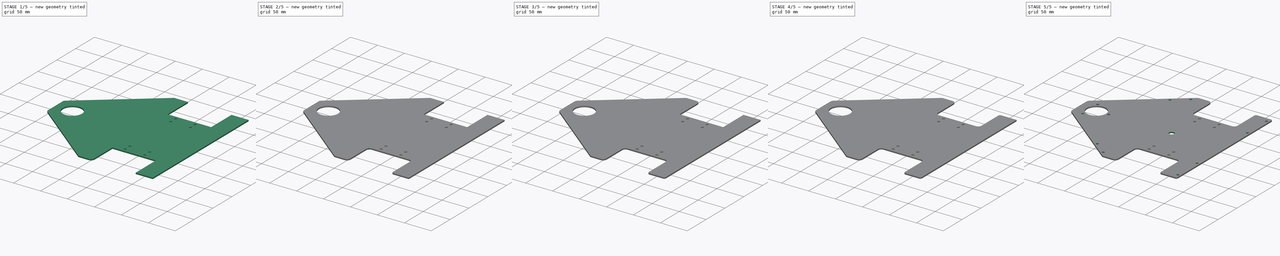
[diagram: build sequence overview — one tinted view per stage of 5, left to right]
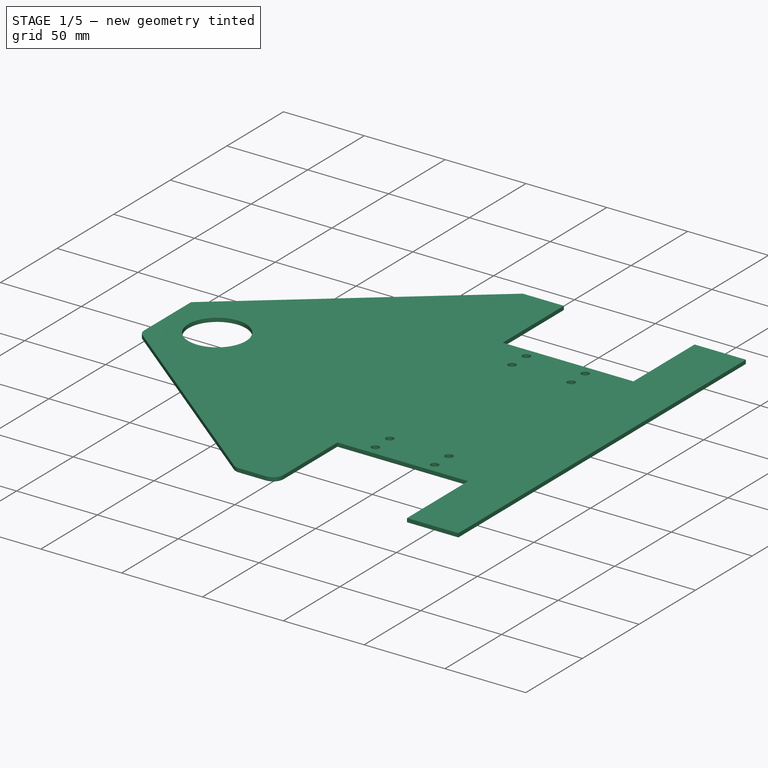
[diagram: stage 1 of 5 — iso view after this stage's code; geometry added in this stage tinted green]
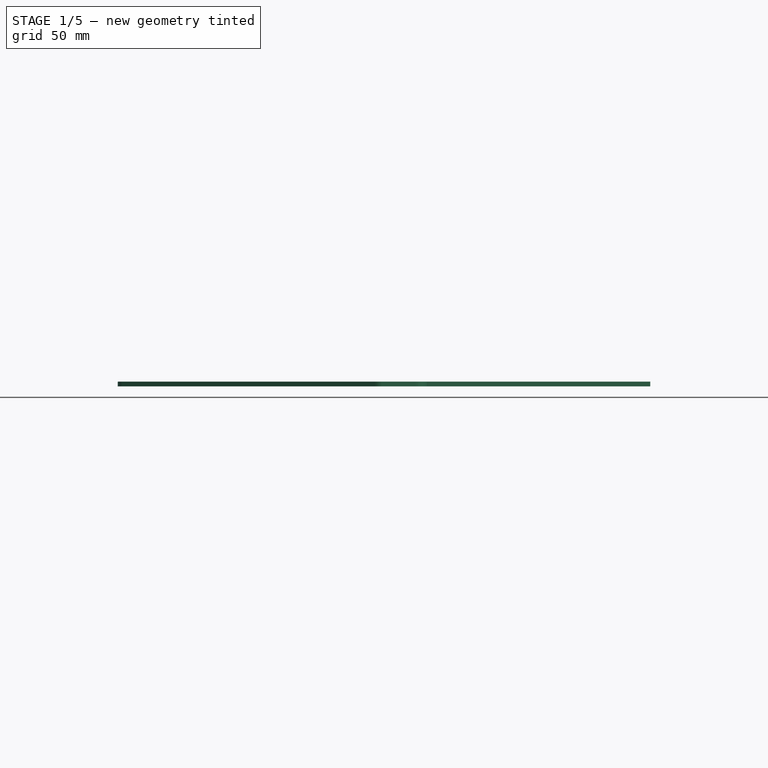
[diagram: stage 1 of 5 — front view after this stage's code; geometry added in this stage tinted green]
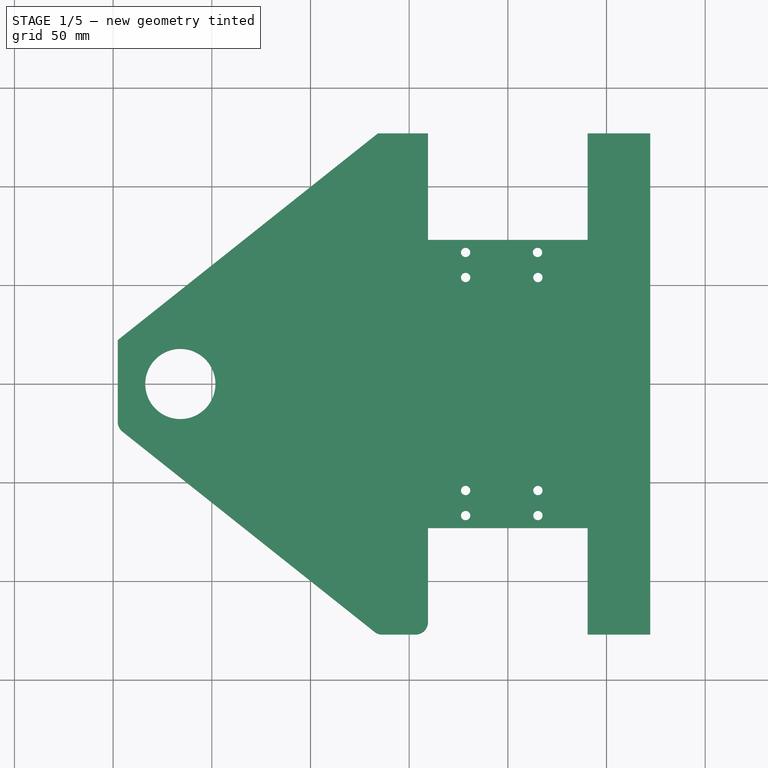
[diagram: stage 1 of 5 — top view after this stage's code; geometry added in this stage tinted green]
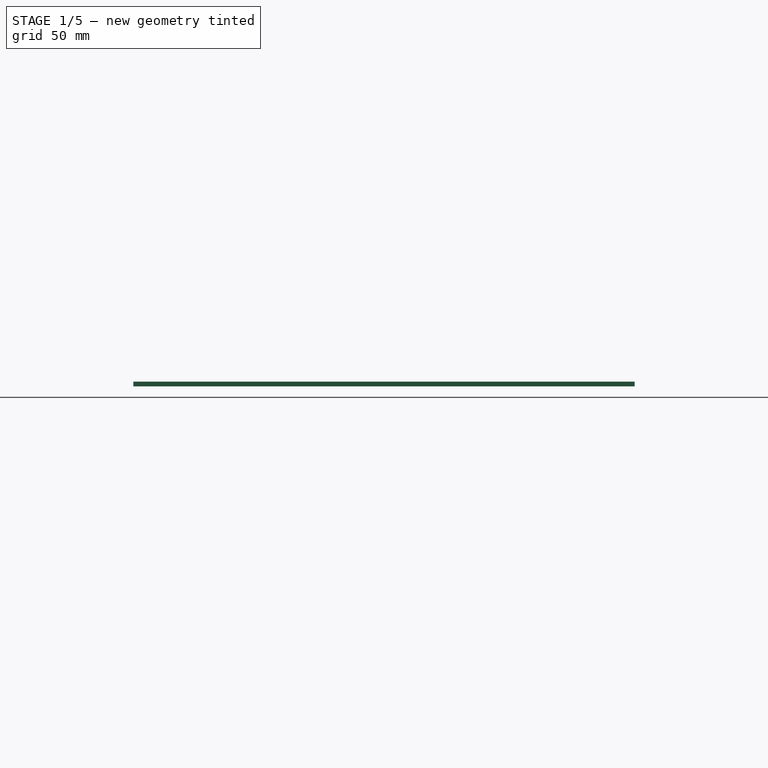
[diagram: stage 1 of 5 — right view after this stage's code; geometry added in this stage tinted green]
FCSTD DOCUMENT  (FreeCAD 0.17R13522 (Git))
Label: plate_bottom
License: All rights reserved
LicenseURL: http://en.wikipedia.org/wiki/All_rights_reserved
objects: PartDesign::Fillet×14, Sketcher::SketchObject×4, PartDesign::Pocket×3, App::DocumentObjectGroup×1, PartDesign::Plane×1, PartDesign::Pad×1, PartDesign::Body×1, App::Part×1
note: 28 computed .brp shape members not serialized (recipe doc carries the construction recipe); baked Part::Feature solids carry a one-line shape summary decoded from their .brp

FEATURE [App::DocumentObjectGroup] Group  label="plate"
FEATURE [PartDesign::Plane] DatumPlane
  AttachmentOffset = pos=(0,0,43.6758) rot=(0,0,1;0rad)
  MapMode = 5
  Placement = pos=(0,0,43.6758) rot=(0,0,1;0rad)
  Support = -> [XY_Plane001]
FEATURE [Sketcher::SketchObject] Sketch  label="main"
  MapMode = 5
  Placement = pos=(0,0,43.6758) rot=(0,0,1;0rad)
  Support = -> [DatumPlane]
  sketch-geometry (24):
    g0: LineSegment StartX=40.4368 StartY=73.025 StartZ=0 EndX=-40.4368 EndY=73.025 EndZ=0
    g1: LineSegment StartX=-40.4368 StartY=73.025 StartZ=0 EndX=-40.4368 EndY=127 EndZ=0
    g2: LineSegment StartX=-40.4368 StartY=127 StartZ=0 EndX=-65.8368 EndY=127 EndZ=0
    g3: LineSegment StartX=-65.8368 StartY=127 StartZ=0 EndX=-197.688 EndY=22.225 EndZ=0
    g4: LineSegment StartX=-197.688 StartY=22.225 StartZ=0 EndX=-197.688 EndY=-22.225 EndZ=0
    g5: LineSegment StartX=-197.688 StartY=-22.225 StartZ=0 EndX=-65.8368 EndY=-127 EndZ=0
    g6: LineSegment StartX=-65.8368 StartY=-127 StartZ=0 EndX=-40.4368 EndY=-127 EndZ=0
    g7: LineSegment StartX=-40.4368 StartY=-127 StartZ=0 EndX=-40.4368 EndY=-73.025 EndZ=0
    g8: LineSegment StartX=-40.4368 StartY=-73.025 StartZ=0 EndX=40.4368 EndY=-73.025 EndZ=0
    g9: LineSegment StartX=40.4368 StartY=-73.025 StartZ=0 EndX=40.4368 EndY=-127 EndZ=0
    g10: LineSegment StartX=40.4368 StartY=-127 StartZ=0 EndX=72.1868 EndY=-127 EndZ=0
    g11: LineSegment StartX=72.1868 StartY=-127 StartZ=0 EndX=72.1868 EndY=127 EndZ=0
    g12: LineSegment StartX=72.1868 StartY=127 StartZ=0 EndX=40.4368 EndY=127 EndZ=0
    g13: LineSegment StartX=40.4368 StartY=127 StartZ=0 EndX=40.4368 EndY=73.025 EndZ=0
    g14: Circle CenterX=-21.3868 CenterY=66.675 CenterZ=0 NormalX=0 NormalY=0 NormalZ=1 AngleXU=0 Radius=2.3622
    g15: Circle CenterX=-21.3868 CenterY=53.975 CenterZ=0 NormalX=0 NormalY=0 NormalZ=1 AngleXU=0 Radius=2.3622
    g16: Circle CenterX=-21.3868 CenterY=-53.975 CenterZ=0 NormalX=0 NormalY=0 NormalZ=1 AngleXU=0 Radius=2.3622
    g17: Circle CenterX=-21.3868 CenterY=-66.675 CenterZ=0 NormalX=0 NormalY=0 NormalZ=1 AngleXU=0 Radius=2.3622
    g18: Circle CenterX=15.0368 CenterY=66.675 CenterZ=0 NormalX=0 NormalY=0 NormalZ=1 AngleXU=0 Radius=2.3622
    g19: Circle CenterX=15.24 CenterY=53.975 CenterZ=0 NormalX=0 NormalY=0 NormalZ=1 AngleXU=0 Radius=2.3622
    g20: Circle CenterX=15.24 CenterY=-53.975 CenterZ=0 NormalX=0 NormalY=0 NormalZ=1 AngleXU=0 Radius=2.3622
    g21: Circle CenterX=15.24 CenterY=-66.675 CenterZ=0 NormalX=0 NormalY=0 NormalZ=1 AngleXU=0 Radius=2.3622
    g22: Circle CenterX=-165.938 CenterY=0 CenterZ=0 NormalX=0 NormalY=0 NormalZ=1 AngleXU=0 Radius=17.78
    g23: LineSegment [constr] StartX=-197.688 StartY=0 StartZ=0 EndX=-165.938 EndY=0 EndZ=0
  constraints (71):
    c: Horizontal(g0)
    c: Coincident(g0,g1)
    c: Vertical(g1)
    c: Coincident(g1,g2)
    c: Horizontal(g2)
    c: Coincident(g2,g3)
    c: Coincident(g3,g4)
    c: Vertical(g4)
    c: Coincident(g4,g5)
    c: Coincident(g5,g6)
    c: Horizontal(g6)
    c: Coincident(g6,g7)
    c: Vertical(g7)
    c: Coincident(g7,g8)
    c: Horizontal(g8)
    c: Coincident(g8,g9)
    c: Vertical(g9)
    c: Coincident(g9,g10)
    c: Horizontal(g10)
    c: Coincident(g10,g11)
    c: Vertical(g11)
    c: Coincident(g11,g12)
    c: Horizontal(g12)
    c: Coincident(g12,g13)
    c: Coincident(g13,g0)
    c: Vertical(g13)
    c: Equal(g13,g9)
    c: Equal(g1,g7)
    c: Equal(g2,g6)
    c: Equal(g3,g5)
    c: Equal(g8,g0)
    c: Equal(g13,g1)
    c: DistanceX(g9,g10) = 31.75
    c: Equal(g20,g19)
    c: Equal(g19,g18)
    c: Equal(g18,g21)
    c: Equal(g21,g17)
    c: Equal(g17,g16)
    c: Equal(g16,g15)
    c: Equal(g15,g14)
    c: Radius(g14) = 2.3622
    c: Horizontal(g23)
    c: DistanceX(g23) = 31.75
    c: Radius(g22) = 17.78
    c: Coincident(g22,g23)
    c: DistanceX(g18,g0) = 25.4
    c: DistanceY(g18,g19) = -12.7
    c: DistanceY(g21,g20) = 12.7
    c: DistanceY(g21,g8) = -6.35
    c: DistanceX(g14,g18) = 36.4236
    c: DistanceX(g15,g19) = 36.6268
    c: DistanceX(g16,g20) = 36.6268
    c: DistanceX(g17,g21) = 36.6268
    c: DistanceX(g14,g0) = -19.05
    c: DistanceX(g17,g7) = -19.05
    c: DistanceY(g17,g7) = -6.35
    c: DistanceY(g14,g0) = 6.35
    c: DistanceX(g15,g0) = -19.05
    c: DistanceX(g16,g0) = -19.05
    c: DistanceX(g17,g0) = -19.05
    c: DistanceY(g15,g14) = 12.7
    c: Symmetric(g0,g7,g-1)
    c: DistanceY(g16,g17) = -12.7
    c: DistanceY(g18,g0) = 6.35
    c: DistanceX(g4,g10) = 269.875
    c: PointOnObject(g23,g4)
    c: DistanceY(g13,g13) = 53.975
    c: DistanceY(g10,g11) = 254
    c: DistanceX(g2,g2) = 25.4
    c: PointOnObject(g22,g-1)
    c: DistanceY(g4,g3) = 44.45
FEATURE [PartDesign::Pad] Pad
  Length = 2.3622
  Length2 = 99.9998
  Placement = pos=(0,0,43.6758) rot=(0,0,1;0rad)
  Profile = -> Sketch
  Type = 0
FEATURE [PartDesign::Fillet] Fillet
  Base = -> Pad [Edge14]
  BaseFeature = -> Pad
  Placement = pos=(0,0,43.6758) rot=(0,0,1;0rad)
  Radius = 6.35
FEATURE [PartDesign::Fillet] Fillet001
  Base = -> Fillet [Edge53]
  BaseFeature = -> Fillet
  Placement = pos=(0,0,43.6758) rot=(0,0,1;0rad)
  Radius = 6.35
FEATURE [PartDesign::Fillet] Fillet002
  Base = -> Fillet001 [Edge33]
  BaseFeature = -> Fillet001
  Placement = pos=(0,0,43.6758) rot=(0,0,1;0rad)
  Radius = 6.35
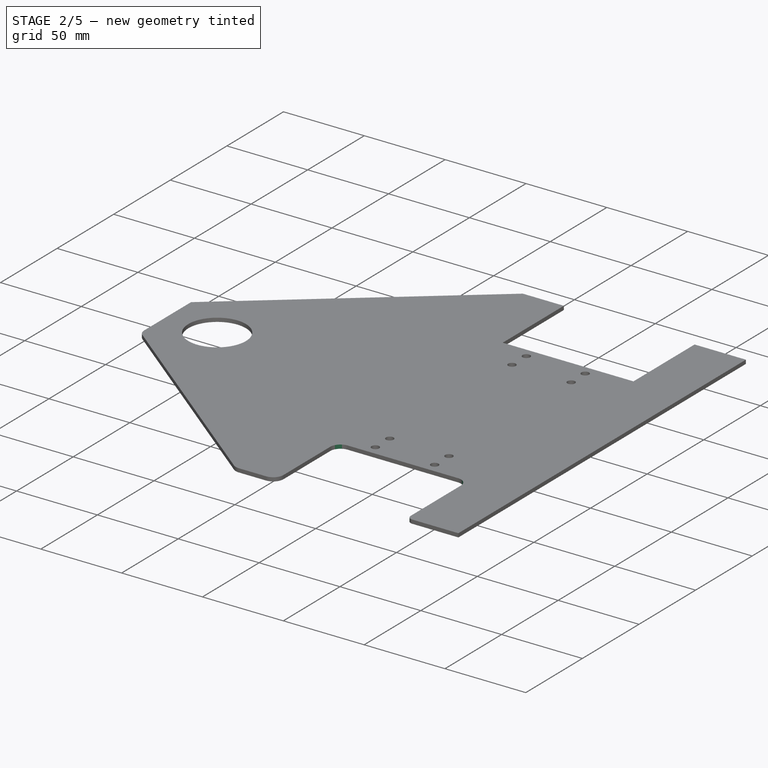
[diagram: stage 2 of 5 — iso view after this stage's code; geometry added in this stage tinted green]
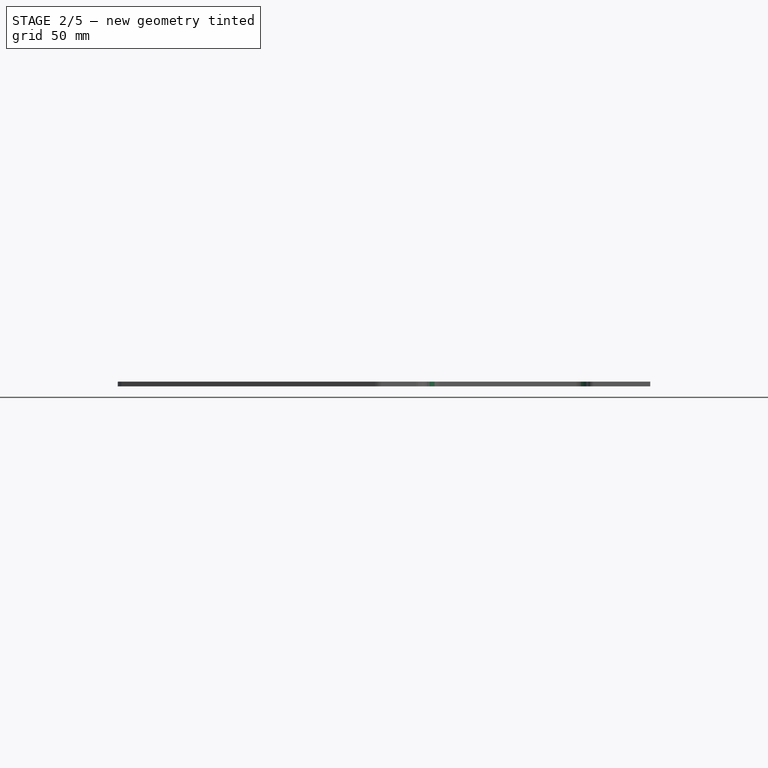
[diagram: stage 2 of 5 — front view after this stage's code; geometry added in this stage tinted green]
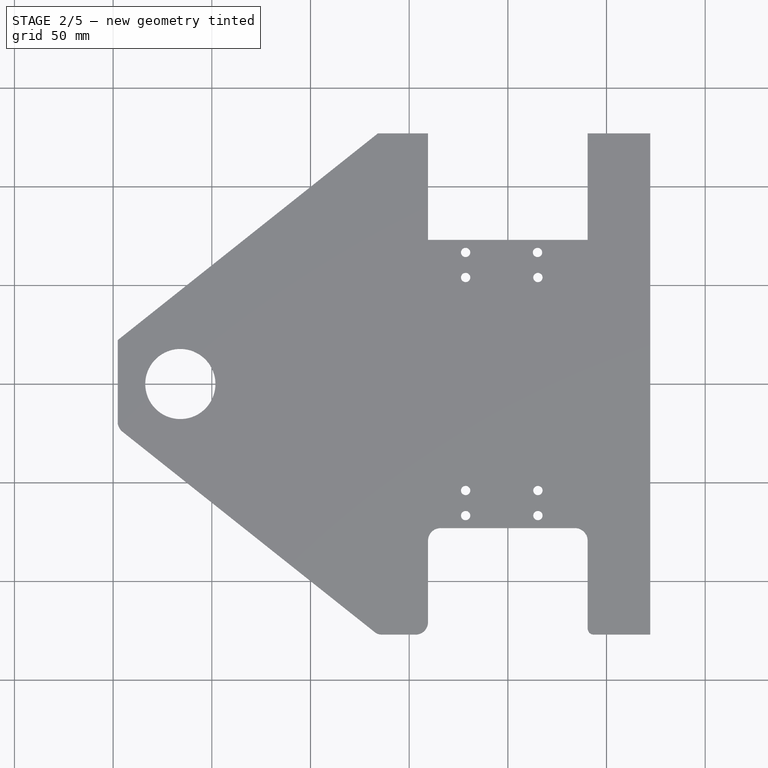
[diagram: stage 2 of 5 — top view after this stage's code; geometry added in this stage tinted green]
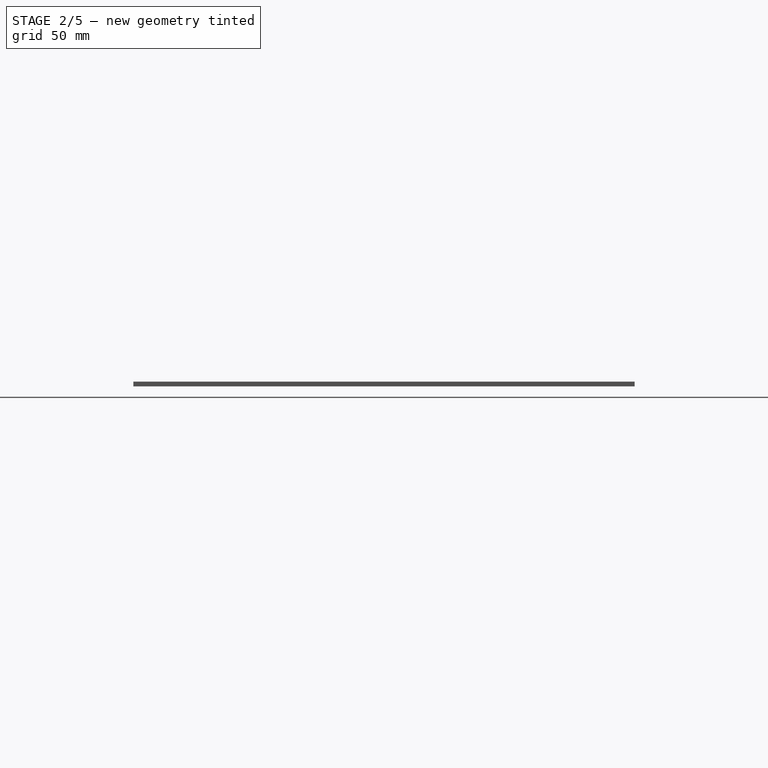
[diagram: stage 2 of 5 — right view after this stage's code; geometry added in this stage tinted green]
FEATURE [PartDesign::Fillet] Fillet003
  Base = -> Fillet002 [Edge34]
  BaseFeature = -> Fillet002
  Placement = pos=(0,0,43.6758) rot=(0,0,1;0rad)
  Radius = 6.35
FEATURE [PartDesign::Fillet] Fillet004
  Base = -> Fillet003 [Edge35]
  BaseFeature = -> Fillet003
  Placement = pos=(0,0,43.6758) rot=(0,0,1;0rad)
  Radius = 6.35
FEATURE [PartDesign::Fillet] Fillet005
  Base = -> Fillet004 [Edge36]
  BaseFeature = -> Fillet004
  Placement = pos=(0,0,43.6758) rot=(0,0,1;0rad)
  Radius = 3.175
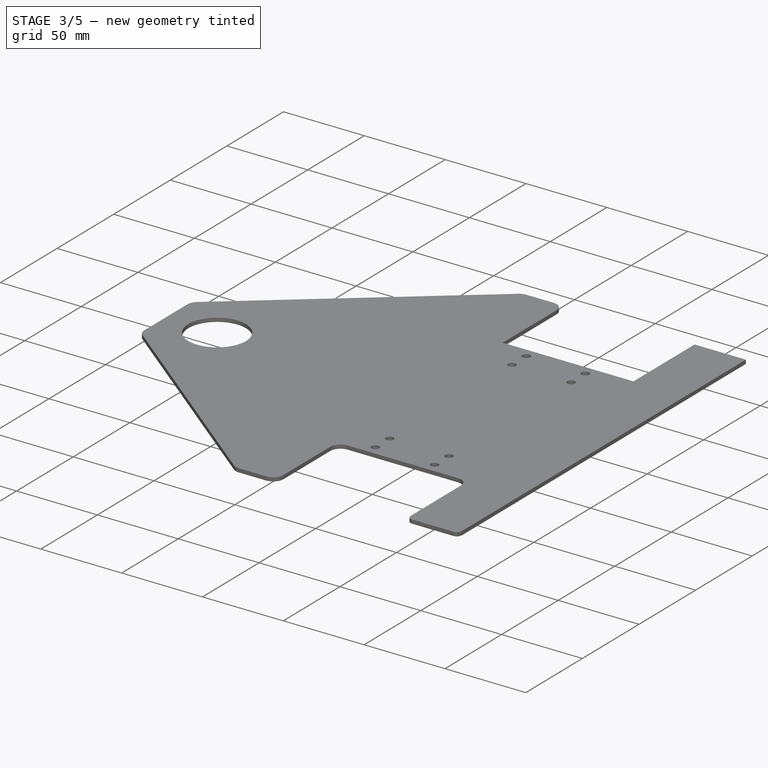
[diagram: stage 3 of 5 — iso view after this stage's code; geometry added in this stage tinted green]
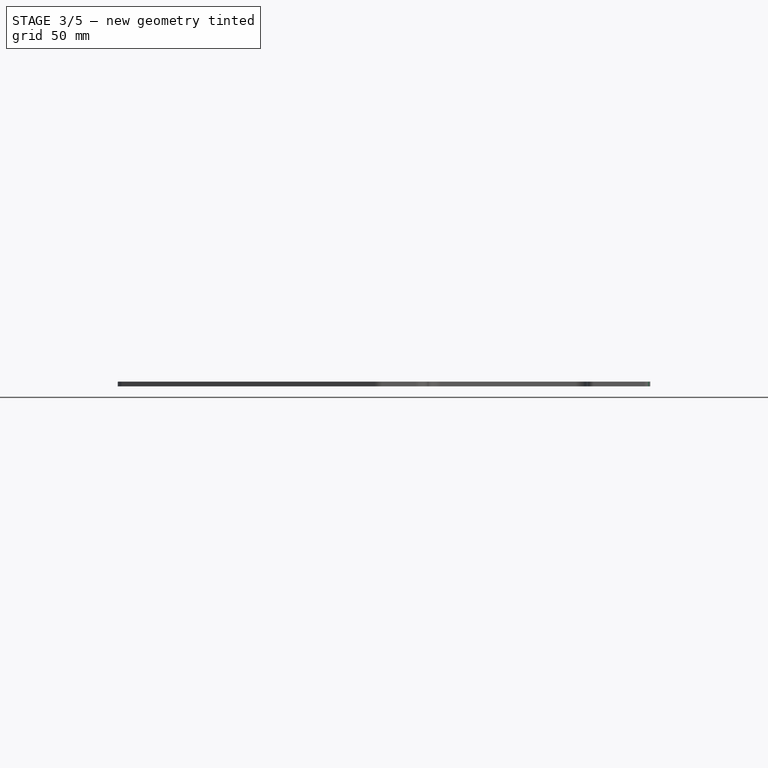
[diagram: stage 3 of 5 — front view after this stage's code; geometry added in this stage tinted green]
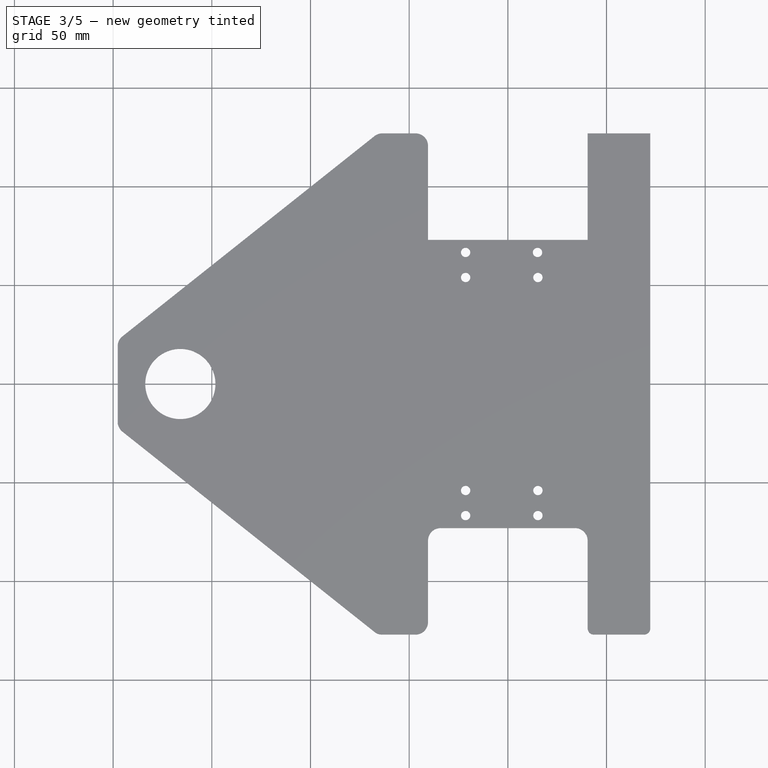
[diagram: stage 3 of 5 — top view after this stage's code; geometry added in this stage tinted green]
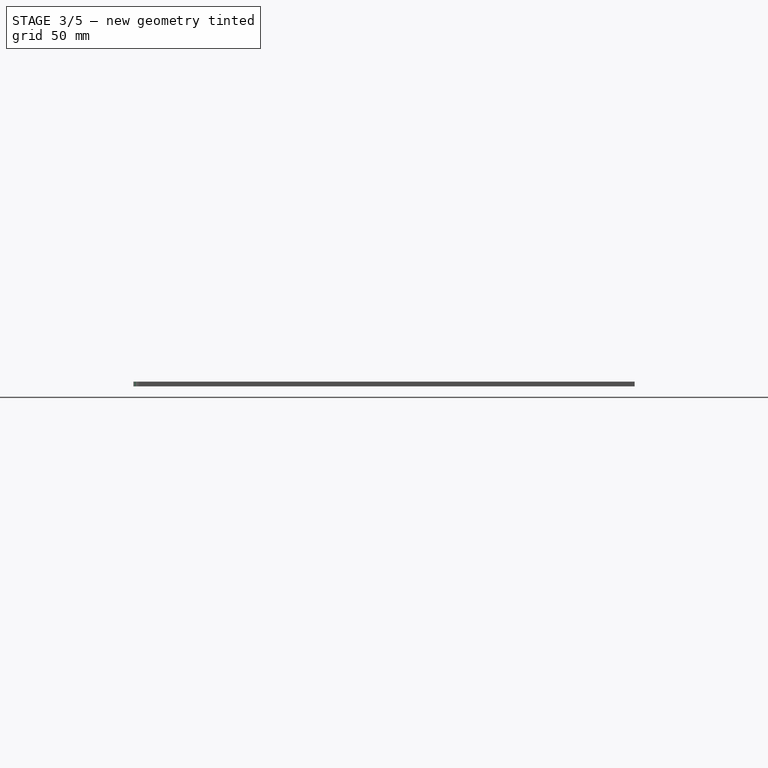
[diagram: stage 3 of 5 — right view after this stage's code; geometry added in this stage tinted green]
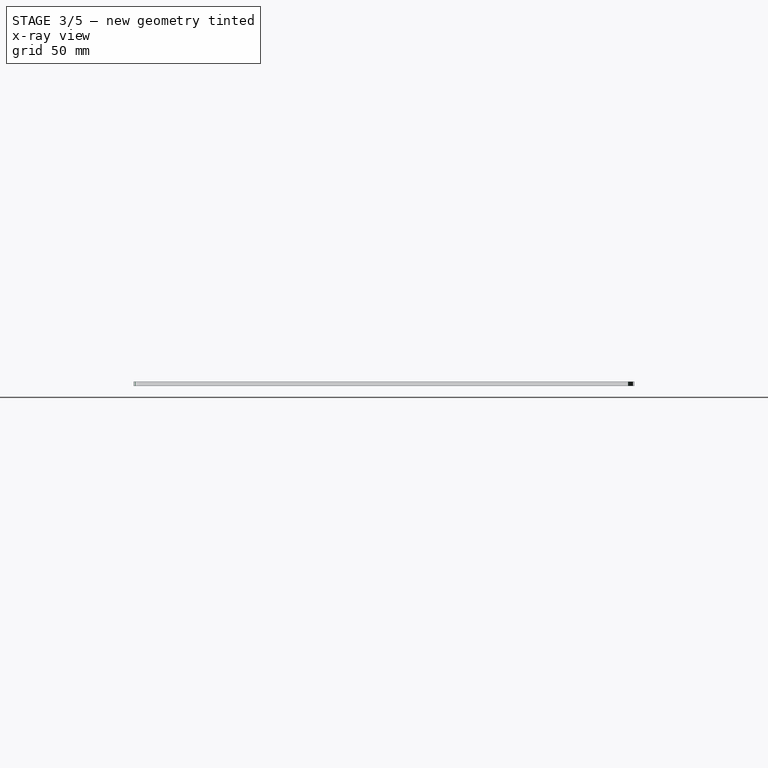
[diagram: stage 3 of 5 — x-ray composite at the right view; earlier geometry ghosted, this stage's added geometry solid]
FEATURE [PartDesign::Fillet] Fillet006
  Base = -> Fillet005 [Edge37]
  BaseFeature = -> Fillet005
  Placement = pos=(0,0,43.6758) rot=(0,0,1;0rad)
  Radius = 3.175
FEATURE [PartDesign::Fillet] Fillet007
  Base = -> Fillet006 [Edge62]
  BaseFeature = -> Fillet006
  Placement = pos=(0,0,43.6758) rot=(0,0,1;0rad)
  Radius = 6.35
FEATURE [PartDesign::Fillet] Fillet008
  Base = -> Fillet007 [Edge33]
  BaseFeature = -> Fillet007
  Placement = pos=(0,0,43.6758) rot=(0,0,1;0rad)
  Radius = 6.35
FEATURE [PartDesign::Fillet] Fillet009
  Base = -> Fillet008 [Edge40]
  BaseFeature = -> Fillet008
  Placement = pos=(0,0,43.6758) rot=(0,0,1;0rad)
  Radius = 6.35
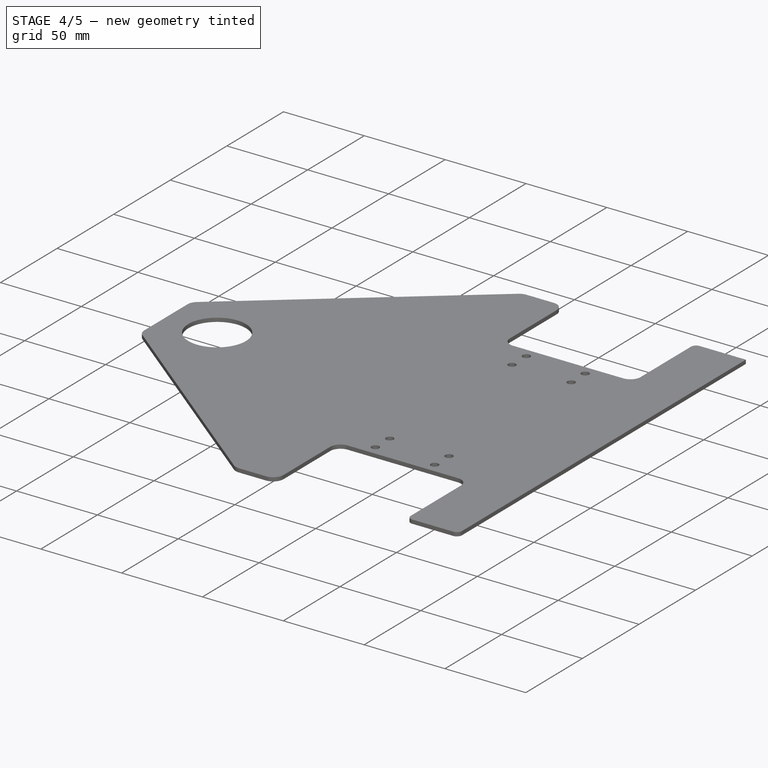
[diagram: stage 4 of 5 — iso view after this stage's code; geometry added in this stage tinted green]
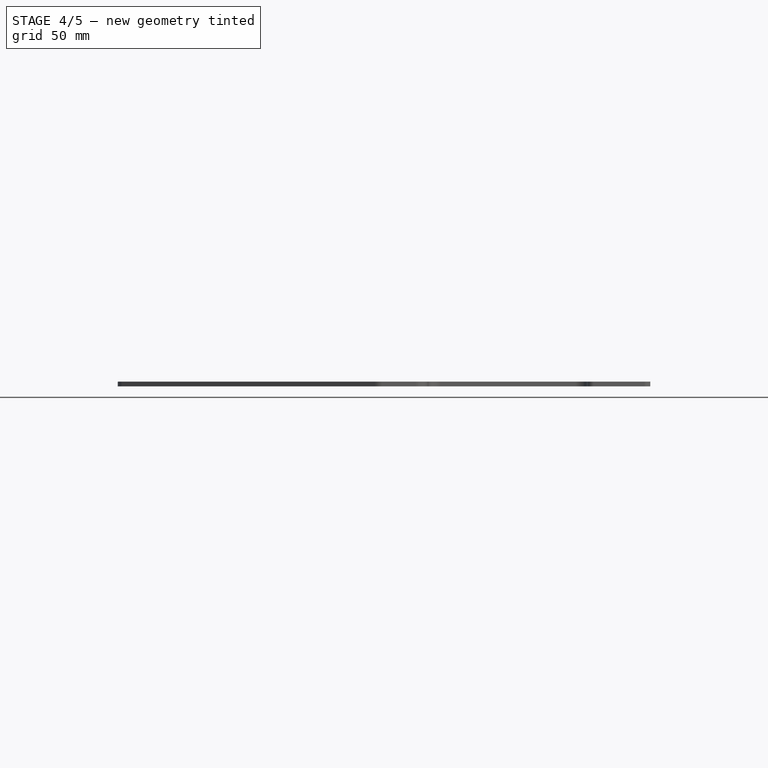
[diagram: stage 4 of 5 — front view after this stage's code; geometry added in this stage tinted green]
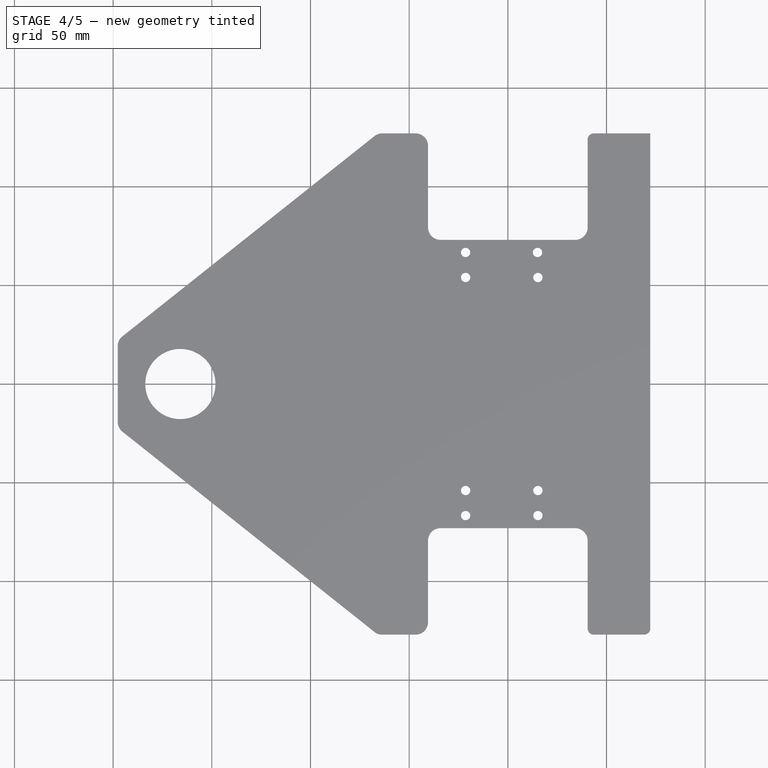
[diagram: stage 4 of 5 — top view after this stage's code; geometry added in this stage tinted green]
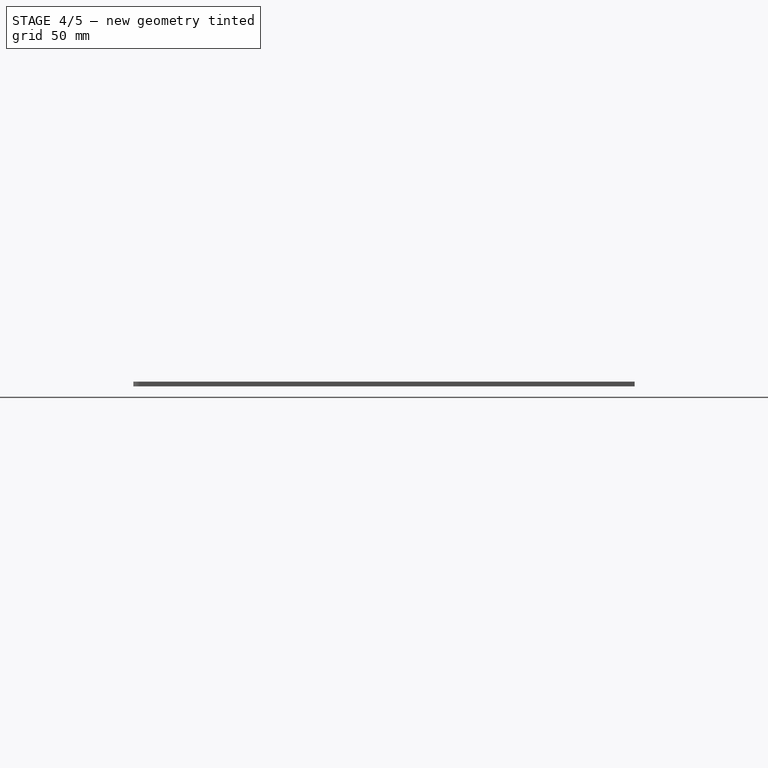
[diagram: stage 4 of 5 — right view after this stage's code; geometry added in this stage tinted green]
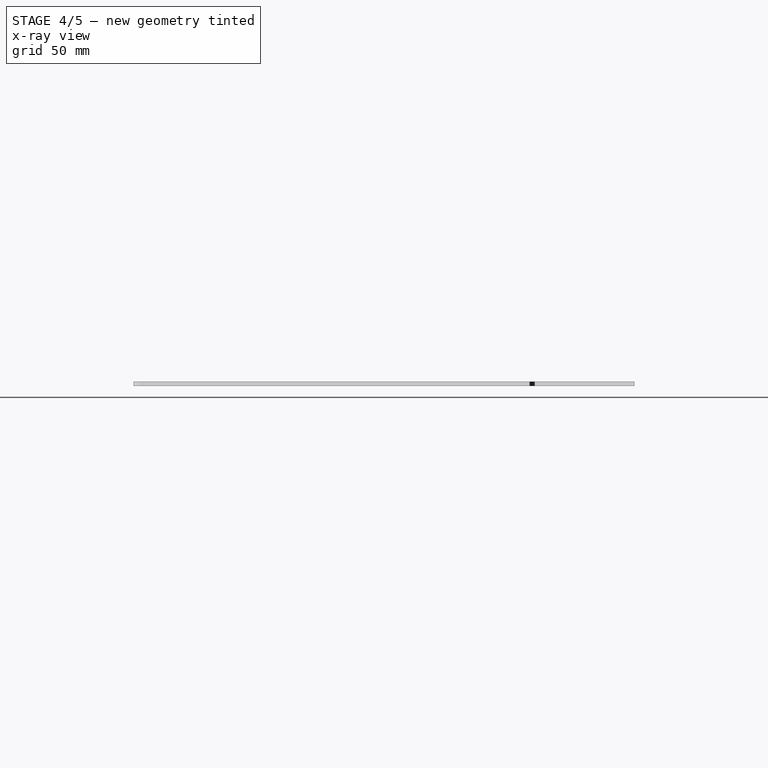
[diagram: stage 4 of 5 — x-ray composite at the right view; earlier geometry ghosted, this stage's added geometry solid]
FEATURE [PartDesign::Fillet] Fillet010
  Base = -> Fillet009 [Edge45]
  BaseFeature = -> Fillet009
  Placement = pos=(0,0,43.6758) rot=(0,0,1;0rad)
  Radius = 6.35
FEATURE [PartDesign::Fillet] Fillet011
  Base = -> Fillet010 [Edge36]
  BaseFeature = -> Fillet010
  Placement = pos=(0,0,43.6758) rot=(0,0,1;0rad)
  Radius = 6.35
FEATURE [PartDesign::Fillet] Fillet012
  Base = -> Fillet011 [Edge45]
  BaseFeature = -> Fillet011
  Placement = pos=(0,0,43.6758) rot=(0,0,1;0rad)
  Radius = 3.175
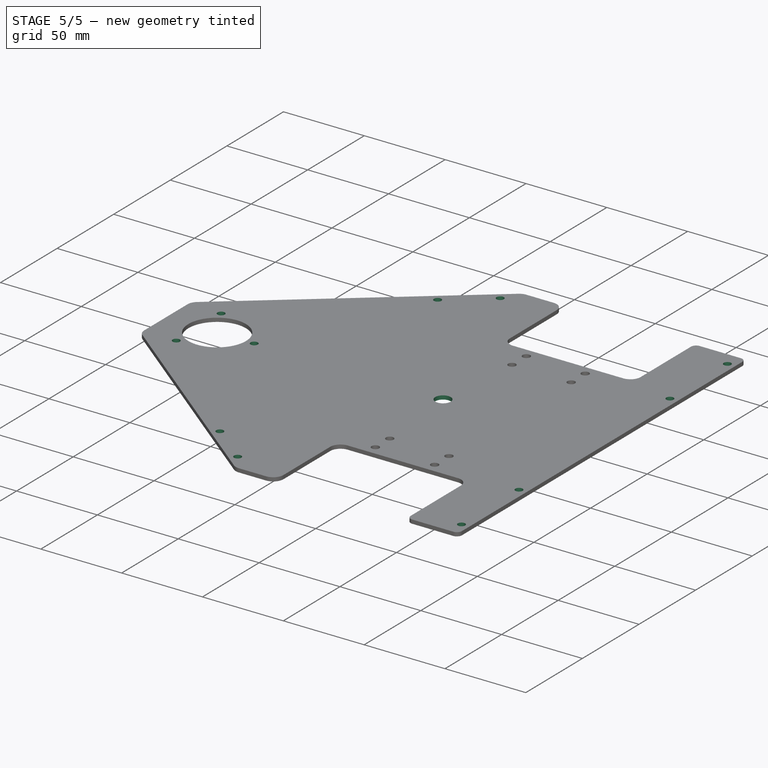
[diagram: stage 5 of 5 — iso view after this stage's code; geometry added in this stage tinted green]
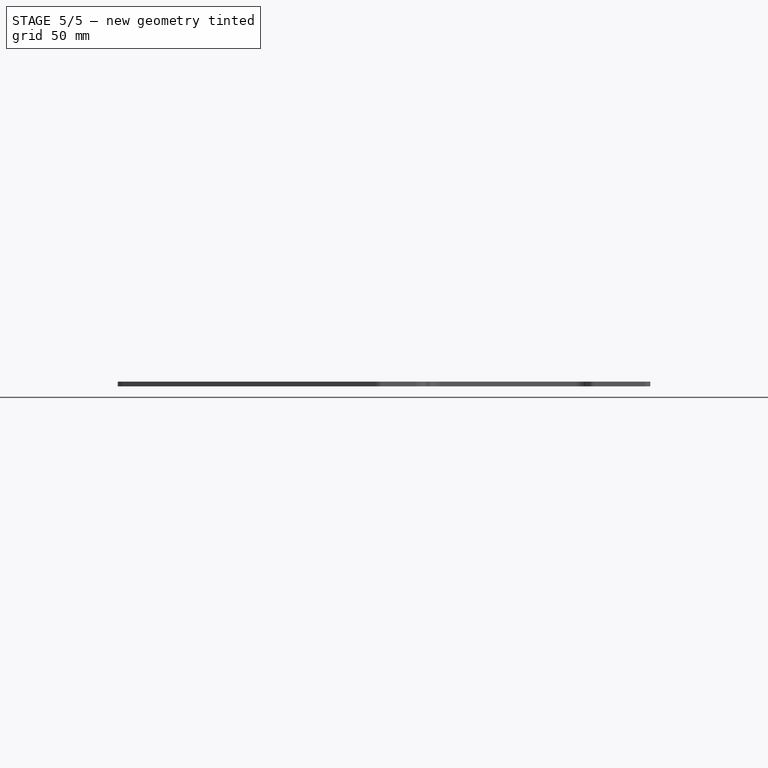
[diagram: stage 5 of 5 — front view after this stage's code; geometry added in this stage tinted green]
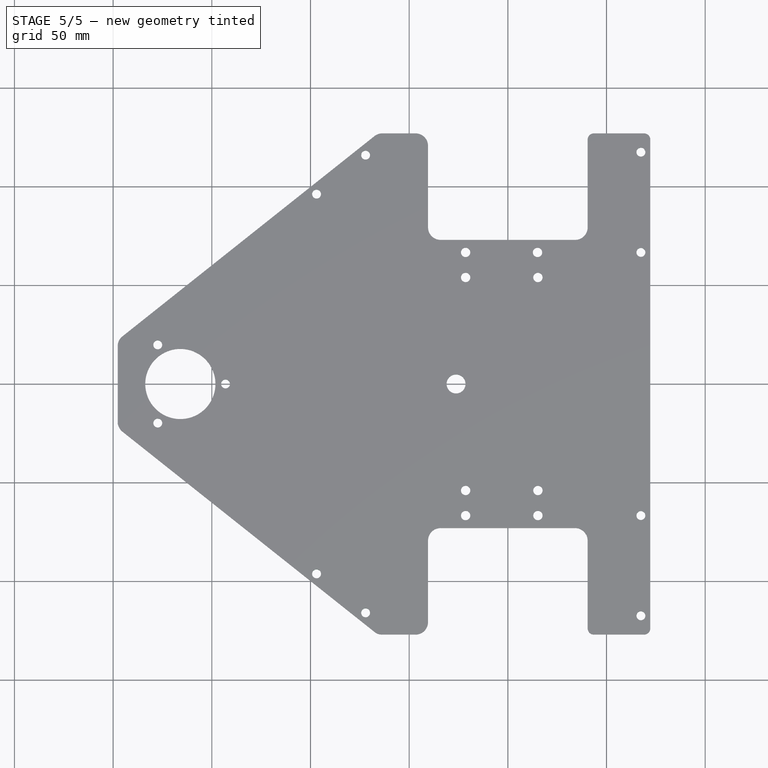
[diagram: stage 5 of 5 — top view after this stage's code; geometry added in this stage tinted green]
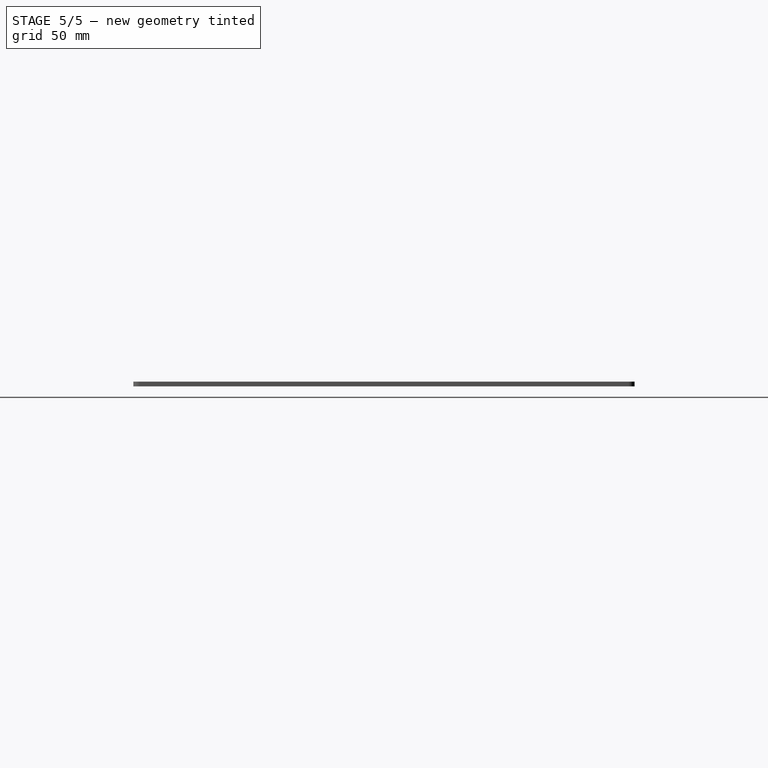
[diagram: stage 5 of 5 — right view after this stage's code; geometry added in this stage tinted green]
FEATURE [PartDesign::Fillet] Fillet013
  Base = -> Fillet012 [Edge44]
  BaseFeature = -> Fillet012
  Placement = pos=(0,0,43.6758) rot=(0,0,1;0rad)
  Radius = 3.175
FEATURE [Sketcher::SketchObject] Sketch001  label="motor_holes"
  ExternalGeometry = -> [Fillet013]
  MapMode = 5
  Placement = pos=(0,0,46.038) rot=(0,0,1;0rad)
  Support = -> [Fillet013]
  sketch-geometry (6):
    g0: LineSegment [constr] StartX=-165.938 StartY=0 StartZ=0 EndX=-26.2382 EndY=0 EndZ=0
    g1: Circle CenterX=-26.2382 CenterY=0 CenterZ=0 NormalX=0 NormalY=0 NormalZ=1 AngleXU=0 Radius=4.79425
    g2: LineSegment [constr] StartX=-26.2382 StartY=0 StartZ=0 EndX=-26.2382 EndY=9.525 EndZ=0
    g3: LineSegment [constr] StartX=-26.2382 StartY=0 StartZ=0 EndX=-18.2753 EndY=0 EndZ=0
    g4: LineSegment [constr] StartX=-26.2382 StartY=0 StartZ=0 EndX=-34.2011 EndY=0 EndZ=0
    g5: LineSegment [constr] StartX=-26.2382 StartY=0 StartZ=0 EndX=-26.2382 EndY=-9.525 EndZ=0
  constraints (17):
    c: Angle(g0) = 0
    c: Distance(g0) = 139.7
    c: Radius(g1) = 4.79425
    c: Coincident(g1,g0)
    c: DistanceY(g2) = 9.525
    c: DistanceX(g3) = 7.9629
    c: Horizontal(g4)
    c: DistanceX(g4) = -7.9629
    c: DistanceY(g5) = -9.525
    c: Vertical(g5)
    c: Coincident(g0,g5)
    c: Horizontal(g3)
    c: Coincident(g3,g0)
    c: Coincident(g2,g0)
    c: Vertical(g2)
    c: Coincident(g4,g0)
    c: Coincident(g0,g-4)
FEATURE [PartDesign::Pocket] Pocket
  BaseFeature = -> Fillet013
  Length = 4.99999
  Length2 = 100
  Placement = pos=(0,0,43.6758) rot=(0,0,1;0rad)
  Profile = -> Sketch001
  Type = 1
FEATURE [Sketcher::SketchObject] Sketch002
  ExternalGeometry = -> [Pocket]
  MapMode = 5
  Placement = pos=(0,0,46.038) rot=(0,0,1;0rad)
  Support = -> [Pocket]
  sketch-geometry (10):
    g0: LineSegment [constr] StartX=-96.9233 StartY=96.2142 StartZ=0 EndX=-72.0659 EndY=115.967 EndZ=0
    g1: LineSegment [constr] StartX=-96.9233 StartY=-96.2142 StartZ=0 EndX=-72.0659 EndY=-115.967 EndZ=0
    g2: LineSegment [constr] StartX=-67.5716 StartY=-125.621 StartZ=0 EndX=-64.6086 EndY=-121.893 EndZ=0
    g3: LineSegment [constr] StartX=-64.6086 StartY=-121.893 StartZ=0 EndX=-72.0659 EndY=-115.967 EndZ=0
    g4: Circle CenterX=-96.9233 CenterY=-96.2142 CenterZ=0 NormalX=0 NormalY=0 NormalZ=1 AngleXU=0 Radius=2.2479
    g5: Circle CenterX=-72.0659 CenterY=-115.967 CenterZ=0 NormalX=0 NormalY=0 NormalZ=1 AngleXU=0 Radius=2.2479
    g6: LineSegment [constr] StartX=-67.5716 StartY=125.621 StartZ=0 EndX=-64.6086 EndY=121.893 EndZ=0
    g7: LineSegment [constr] StartX=-64.6086 StartY=121.893 StartZ=0 EndX=-72.0659 EndY=115.967 EndZ=0
    g8: Circle CenterX=-72.0659 CenterY=115.967 CenterZ=0 NormalX=0 NormalY=0 NormalZ=1 AngleXU=0 Radius=2.2479
    g9: Circle CenterX=-96.9233 CenterY=96.2142 CenterZ=0 NormalX=0 NormalY=0 NormalZ=1 AngleXU=0 Radius=2.2479
  constraints (26):
    c: Parallel(g-4,g0)
    c: Distance(g0) = 31.75
    c: Parallel(g1,g-3)
    c: Distance(g1) = 31.75
    c: Perpendicular(g-3,g2)
    c: Coincident(g2,g-3)
    c: Distance(g2) = 4.7625
    c: Parallel(g3,g-3)
    c: Distance(g3) = 9.525
    c: Coincident(g3,g2)
    c: Coincident(g1,g3)
    c: Radius(g5) = 2.2479
    c: Equal(g5,g4)
    c: Coincident(g5,g1)
    c: Coincident(g4,g1)
    c: Perpendicular(g-4,g6)
    c: Distance(g6) = 4.7625
    c: Coincident(g6,g-4)
    c: Parallel(g7,g-4)
    c: Distance(g7) = 9.525
    c: Coincident(g7,g6)
    c: Coincident(g0,g7)
    c: Radius(g9) = 2.2479
    c: Equal(g9,g8)
    c: Coincident(g8,g0)
    c: Coincident(g9,g0)
FEATURE [PartDesign::Pocket] Pocket001
  BaseFeature = -> Pocket
  Length = 4.99999
  Length2 = 100
  Placement = pos=(0,0,43.6758) rot=(0,0,1;0rad)
  Profile = -> Sketch002
  Type = 1
FEATURE [Sketcher::SketchObject] Sketch003
  ExternalGeometry = -> [Pocket001]
  MapMode = 5
  Placement = pos=(0,0,46.038) rot=(0,0,1;0rad)
  Support = -> [Pocket001]
  sketch-geometry (12):
    g0: Circle CenterX=67.4243 CenterY=-117.475 CenterZ=0 NormalX=0 NormalY=0 NormalZ=1 AngleXU=0 Radius=2.2479
    g1: Circle CenterX=67.4243 CenterY=-66.675 CenterZ=0 NormalX=0 NormalY=0 NormalZ=1 AngleXU=0 Radius=2.2479
    g2: Circle CenterX=67.4243 CenterY=117.475 CenterZ=0 NormalX=0 NormalY=0 NormalZ=1 AngleXU=0 Radius=2.2479
    g3: LineSegment [constr] StartX=67.4243 StartY=-66.675 StartZ=0 EndX=67.4243 EndY=-117.475 EndZ=0
    g4: LineSegment [constr] StartX=67.4243 StartY=117.475 StartZ=0 EndX=67.4243 EndY=66.675 EndZ=0
    g5: Circle CenterX=67.4243 CenterY=66.675 CenterZ=0 NormalX=0 NormalY=0 NormalZ=1 AngleXU=0 Radius=2.2479
    g6: LineSegment [constr] StartX=-165.938 StartY=0 StartZ=0 EndX=-177.381 EndY=19.8193 EndZ=0
    g7: LineSegment [constr] StartX=-165.938 StartY=0 StartZ=0 EndX=-177.381 EndY=-19.8193 EndZ=0
    g8: LineSegment [constr] StartX=-165.938 StartY=0 StartZ=0 EndX=-143.053 EndY=0 EndZ=0
    g9: Circle CenterX=-177.381 CenterY=19.8193 CenterZ=0 NormalX=0 NormalY=0 NormalZ=1 AngleXU=0 Radius=2.2479
    g10: Circle CenterX=-177.381 CenterY=-19.8193 CenterZ=0 NormalX=0 NormalY=0 NormalZ=1 AngleXU=0 Radius=2.2479
    g11: Circle CenterX=-143.053 CenterY=0 CenterZ=0 NormalX=0 NormalY=0 NormalZ=1 AngleXU=0 Radius=2.2479
FEATURE [PartDesign::Pocket] Pocket002
  BaseFeature = -> Pocket001
  Length = 4.99999
  Length2 = 100
  Placement = pos=(0,0,43.6758) rot=(0,0,1;0rad)
  Profile = -> Sketch003
  Type = 0
FEATURE [PartDesign::Body] Pocket002Body
  Group = -> [DatumPlane,Sketch,Pad,Fillet,Fillet001,Fillet002,Fillet003,Fillet004,Fillet005,Fillet006,Fillet007,Fillet008,Fillet009,Fillet010,Fillet011,Fillet012,Fillet013,Sketch001,Pocket,Sketch002,Pocket001,Sketch003,Pocket002]
  Origin = -> Origin001
  Tip = -> Pocket002
FEATURE [App::Part] Part
  Group = -> [Pocket002Body]
  License = CC BY 3.0
  LicenseURL = http://creativecommons.org/licenses/by/3.0/
  Origin = -> Origin
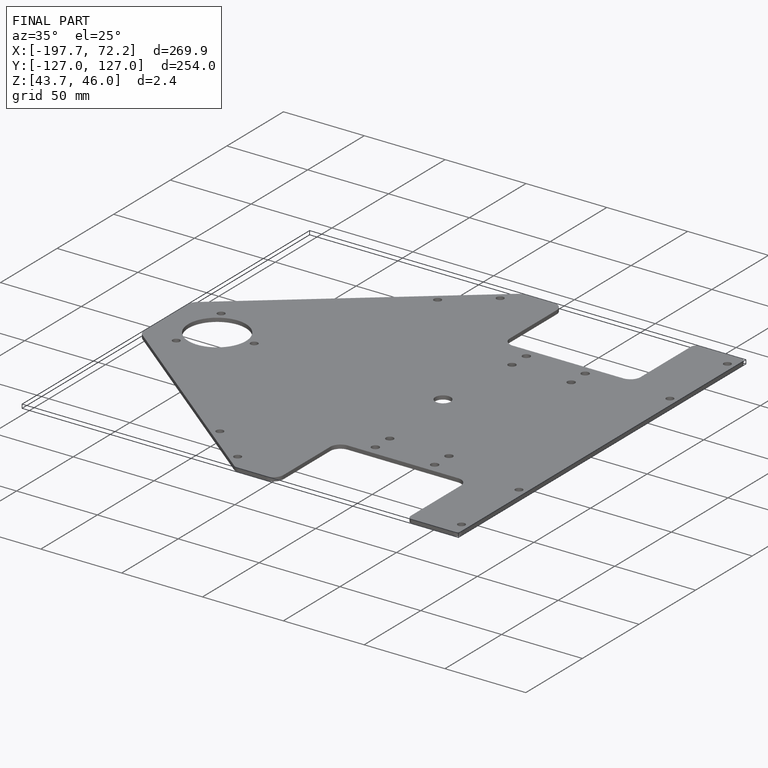
[diagram: finished part — iso view with bounding-box wireframe]
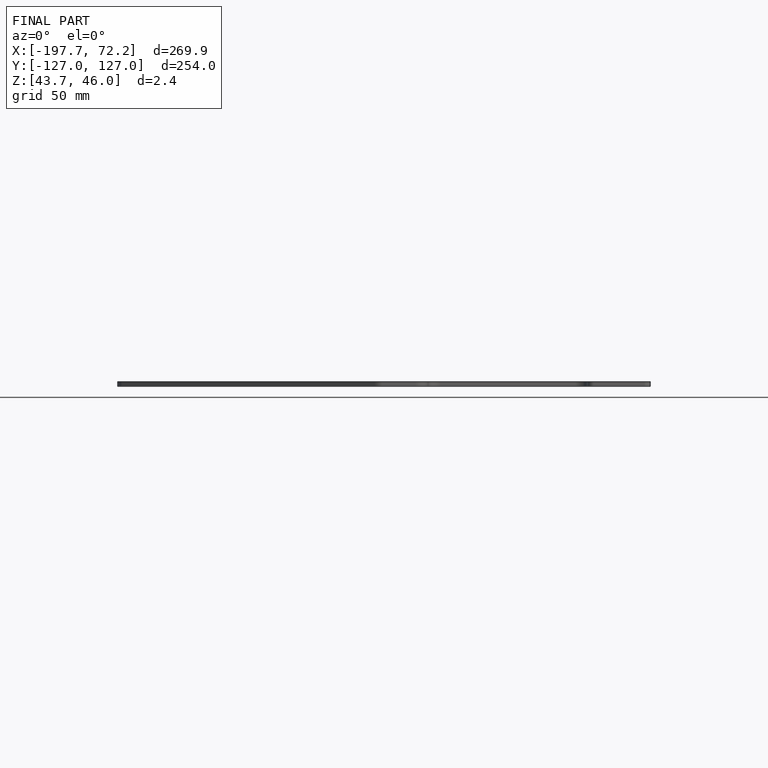
[diagram: finished part — front view with bounding-box wireframe]
